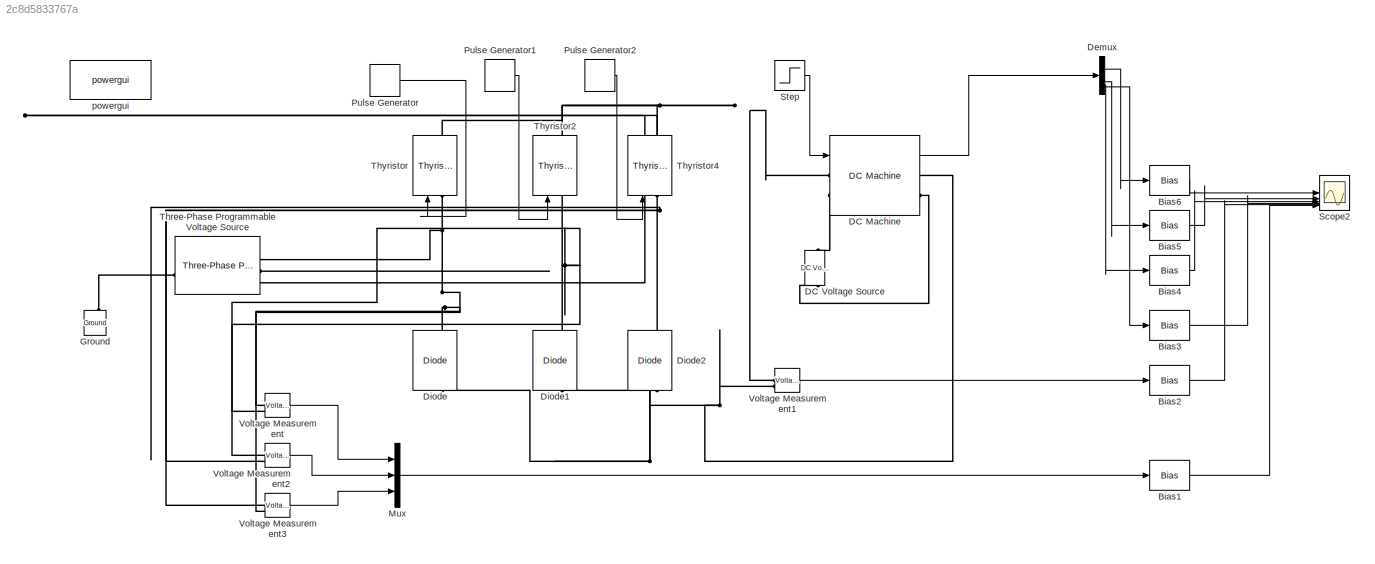
MODEL slx_2c8d5833767a
KIND model
CONFIG AbsTol = auto
CONFIG EnableMultiTasking = off
CONFIG FixedStep = auto
CONFIG MaxStep = auto
CONFIG MinStep = auto
CONFIG RelTol = 1e-3
CONFIG SampleTimeConstraint = Unconstrained
CONFIG SolverName = VariableStepAuto
CONFIG StartTime = 0.0
CONFIG StopTime = 0.1
BLOCK [Bias] Bias1
  Bias = 8000
  SaturateOnIntegerOverflow = off
BLOCK [Bias] Bias2
  Bias = 6000
  SaturateOnIntegerOverflow = off
BLOCK [Bias] Bias3
  Bias = 4000
  SaturateOnIntegerOverflow = off
BLOCK [Bias] Bias4
  Bias = 3000
  SaturateOnIntegerOverflow = off
BLOCK [Bias] Bias5
  Bias = 2000
  SaturateOnIntegerOverflow = off
BLOCK [Bias] Bias6
  Bias = 1000
  SaturateOnIntegerOverflow = off
BLOCK [Reference] DC Machine  REF=spsDCMachineLib/DC Machine
  LibrarySourceBlock = sps_lib/Electrical Machines/DC Machine
  SourceBlock = spsDCMachineLib/DC Machine
  SourceType = DC machine
BLOCK [Reference] DC Voltage Source  REF=spsDCVoltageSourceLib/DC Voltage Source
  LibrarySourceBlock = sps_lib/Sources/DC Voltage Source
  SourceBlock = spsDCVoltageSourceLib/DC Voltage Source
  SourceType = DC Voltage Source
BLOCK [Demux] Demux
BLOCK [Reference] Diode  REF=spsDiodeLib/Diode
  LibrarySourceBlock = sps_lib/Power Electronics/Diode
  NameLocation = right
  SourceBlock = spsDiodeLib/Diode
  SourceType = Diode
BLOCK [Reference] Diode1  REF=spsDiodeLib/Diode
  LibrarySourceBlock = sps_lib/Power Electronics/Diode
  NameLocation = right
  SourceBlock = spsDiodeLib/Diode
  SourceType = Diode
BLOCK [Reference] Diode2  REF=spsDiodeLib/Diode
  LibrarySourceBlock = sps_lib/Power Electronics/Diode
  NameLocation = right
  SourceBlock = spsDiodeLib/Diode
  SourceType = Diode
BLOCK [Reference] Ground  REF=spsGroundLib/Ground
  LibrarySourceBlock = sps_lib/Utilities/Ground
  NameLocation = right
  SourceBlock = spsGroundLib/Ground
  SourceType = Ground
BLOCK [Mux] Mux
  DisplayOption = bar
  Inputs = 3
BLOCK [DiscretePulseGenerator] Pulse Generator
  Period = 0.02
  PhaseDelay = 0*0.02/360
  PulseType = Time based
  PulseWidth = 5
BLOCK [DiscretePulseGenerator] Pulse Generator1
  Period = 0.02
  PhaseDelay = (0+120)*0.02/360
  PulseType = Time based
  PulseWidth = 5
BLOCK [DiscretePulseGenerator] Pulse Generator2
  Period = 0.02
  PhaseDelay = (0+240)*0.02/360
  PulseType = Time based
  PulseWidth = 5
BLOCK [Scope] Scope2
  Floating = off
  NumInputPorts = 6
  ScopeSpecificationString = Simulink.scopes.TimeScopeBlockCfg('CurrentConfiguration', extmgr.ConfigurationSet(extmgr.Configuration('Core','General UI',true),extmgr.Configuration('Core','Source UI',true),extmgr.Configuration('Sources','WiredSimulink',true),extmgr.Configuration('Visuals','Time Domain',true,'SerializedDisplays',{struct('MinYLimReal','52.76541','MaxYLimReal','9535.11135','YLabelReal','','MinYLimMag','52.76541','...<+1545ch>
BLOCK [Step] Step
  SampleTime = 0
BLOCK [Reference] Three-Phase Programmable Voltage Source  REF=spsThreePhaseProgrammableVoltageSourceLib/Three-Phase
Programmable
Voltage Source
  LibrarySourceBlock = sps_lib/Sources/Three-Phase\nProgrammable\nVoltage Source
  SourceBlock = spsThreePhaseProgrammableVoltageSourceLib/Three-Phase\nProgrammable\nVoltage Source
  SourceType = Three-Phase Programmable Voltage Source
BLOCK [Reference] Thyristor  REF=spsThyristorLib/Thyristor
  LibrarySourceBlock = sps_lib/Power Electronics/Thyristor
  NameLocation = right
  SourceBlock = spsThyristorLib/Thyristor
  SourceType = Thyristor
BLOCK [Reference] Thyristor2  REF=spsThyristorLib/Thyristor
  LibrarySourceBlock = sps_lib/Power Electronics/Thyristor
  NameLocation = right
  SourceBlock = spsThyristorLib/Thyristor
  SourceType = Thyristor
BLOCK [Reference] Thyristor4  REF=spsThyristorLib/Thyristor
  LibrarySourceBlock = sps_lib/Power Electronics/Thyristor
  NameLocation = right
  SourceBlock = spsThyristorLib/Thyristor
  SourceType = Thyristor
BLOCK [Reference] Voltage Measurement  REF=spsVoltageMeasurementLib/Voltage Measurement
  LibrarySourceBlock = sps_lib/Sensors and Measurements/Voltage Measurement
  SourceBlock = spsVoltageMeasurementLib/Voltage Measurement
  SourceType = Voltage Measurement
  UserDataPersistent = on
BLOCK [Reference] Voltage Measurement1  REF=spsVoltageMeasurementLib/Voltage Measurement
  LibrarySourceBlock = sps_lib/Sensors and Measurements/Voltage Measurement
  SourceBlock = spsVoltageMeasurementLib/Voltage Measurement
  SourceType = Voltage Measurement
  UserDataPersistent = on
BLOCK [Reference] Voltage Measurement2  REF=spsVoltageMeasurementLib/Voltage Measurement
  LibrarySourceBlock = sps_lib/Sensors and Measurements/Voltage Measurement
  SourceBlock = spsVoltageMeasurementLib/Voltage Measurement
  SourceType = Voltage Measurement
  UserDataPersistent = on
BLOCK [Reference] Voltage Measurement3  REF=spsVoltageMeasurementLib/Voltage Measurement
  LibrarySourceBlock = sps_lib/Sensors and Measurements/Voltage Measurement
  SourceBlock = spsVoltageMeasurementLib/Voltage Measurement
  SourceType = Voltage Measurement
  UserDataPersistent = on
BLOCK [Reference] powergui  REF=sps_lib/powergui
  LibrarySourceBlock = sps_lib/powergui
  Priority = 1
  SourceBlock = sps_lib/powergui
  SourceType = PSB option menu block
LINE Bias1:1 -> Scope2:6
LINE Bias2:1 -> Scope2:5
LINE Bias3:1 -> Scope2:4
LINE Bias4:1 -> Scope2:3
LINE Bias5:1 -> Scope2:2
LINE Bias6:1 -> Scope2:1
LINE DC Machine:1 -> Demux:1
LINE Demux:1 -> Bias6:1
LINE Demux:2 -> Bias5:1
LINE Demux:3 -> Bias4:1
LINE Demux:4 -> Bias3:1
LINE Mux:1 -> Bias1:1
LINE Pulse Generator1:1 -> Thyristor2:1
LINE Pulse Generator2:1 -> Thyristor4:1
LINE Pulse Generator:1 -> Thyristor:1
LINE Step:1 -> DC Machine:1
LINE Voltage Measurement1:1 -> Bias2:1
LINE Voltage Measurement2:1 -> Mux:2
LINE Voltage Measurement3:1 -> Mux:3
LINE Voltage Measurement:1 -> Mux:1
PNET net1: DC Machine:LConn1 -- Thyristor2:RConn1 -- Thyristor4:RConn1 -- Thyristor:RConn1 -- Voltage Measurement1:LConn1
PLINE DC Machine:LConn2 -- DC Voltage Source:RConn1
PNET net2: DC Machine:RConn1 -- Diode1:LConn1 -- Diode2:LConn1 -- Diode:LConn1 -- Voltage Measurement1:LConn2
PLINE DC Machine:RConn2 -- DC Voltage Source:LConn1
PNET net3: Diode1:RConn1 -- Three-Phase Programmable Voltage Source:RConn2 -- Thyristor2:LConn1 -- Voltage Measurement2:LConn1 -- Voltage Measurement:LConn2
PNET net4: Diode2:RConn1 -- Three-Phase Programmable Voltage Source:RConn3 -- Thyristor4:LConn1 -- Voltage Measurement2:LConn2 -- Voltage Measurement3:LConn1
PNET net5: Diode:RConn1 -- Three-Phase Programmable Voltage Source:RConn1 -- Thyristor:LConn1 -- Voltage Measurement3:LConn2 -- Voltage Measurement:LConn1
PLINE Ground:LConn1 -- Three-Phase Programmable Voltage Source:LConn1
note: PNET lines group multi-terminal physical nets as a canonical sorted terminal list (undirected conserving connections); 2-terminal nets keep the pairwise PLINE form
